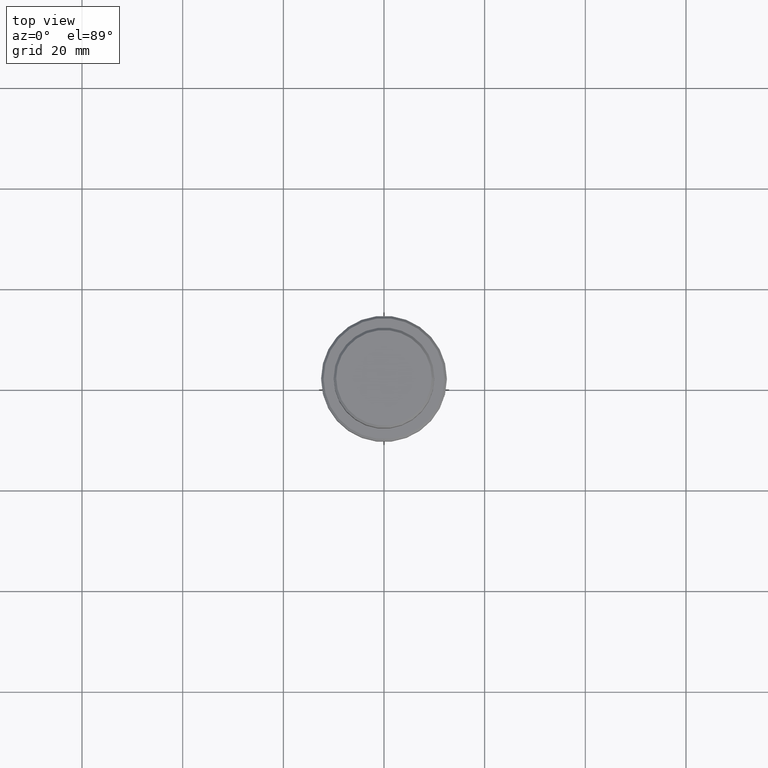
[diagram: clean part render]
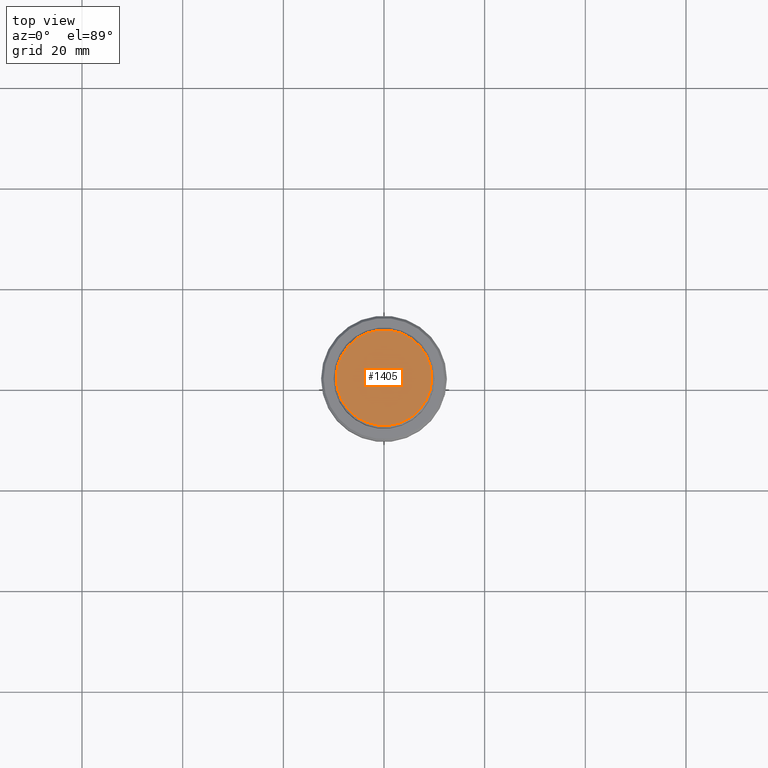
[diagram: same view with one face highlighted and labeled with its STEP entity id]
A machine part, top view. The second image highlights one B-rep face of the part: STEP entity #1405.
In plain terms, the highlighted planar face has unit normal (0, -0, 1).
Its self-contained STEP definition (entity closure, byte-faithful):
#5 = DIRECTION ( 'NONE',  ( 1.000000000000000000, 0.000000000000000000, 0.000000000000000000 ) ) ;
#7 = AXIS2_PLACEMENT_3D ( 'NONE', #857, #1396, #1186 ) ;
#27 = EDGE_CURVE ( 'NONE', #964, #1384, #1060, .T. ) ;
#111 = CARTESIAN_POINT ( 'NONE',  ( 9.500000000000023093, 1.194030629168670653E-15, 0.000000000000000000 ) ) ;
#127 = DIRECTION ( 'NONE',  ( 1.000000000000000000, 0.000000000000000000, 0.000000000000000000 ) ) ;
#208 = EDGE_CURVE ( 'NONE', #1384, #964, #656, .T. ) ;
#548 = PLANE ( 'NONE',  #1134 ) ;
#561 = DIRECTION ( 'NONE',  ( 0.000000000000000000, -0.000000000000000000, 1.000000000000000000 ) ) ;
#644 = CARTESIAN_POINT ( 'NONE',  ( 0.000000000000000000, 0.000000000000000000, 0.000000000000000000 ) ) ;
#656 = CIRCLE ( 'NONE', #7, 9.500000000000023093 ) ;
#676 = AXIS2_PLACEMENT_3D ( 'NONE', #1117, #1332, #127 ) ;
#741 = EDGE_LOOP ( 'NONE', ( #1294, #1221 ) ) ;
#804 = FACE_OUTER_BOUND ( 'NONE', #741, .T. ) ;
#857 = CARTESIAN_POINT ( 'NONE',  ( 0.000000000000000000, 0.000000000000000000, 0.000000000000000000 ) ) ;
#964 = VERTEX_POINT ( 'NONE', #1009 ) ;
#1009 = CARTESIAN_POINT ( 'NONE',  ( -9.500000000000023093, 0.000000000000000000, 0.000000000000000000 ) ) ;
#1060 = CIRCLE ( 'NONE', #676, 9.500000000000023093 ) ;
#1117 = CARTESIAN_POINT ( 'NONE',  ( 0.000000000000000000, 0.000000000000000000, 0.000000000000000000 ) ) ;
#1134 = AXIS2_PLACEMENT_3D ( 'NONE', #644, #561, #5 ) ;
#1186 = DIRECTION ( 'NONE',  ( 1.000000000000000000, 0.000000000000000000, 0.000000000000000000 ) ) ;
#1221 = ORIENTED_EDGE ( 'NONE', *, *, #208, .T. ) ;
#1294 = ORIENTED_EDGE ( 'NONE', *, *, #27, .T. ) ;
#1332 = DIRECTION ( 'NONE',  ( -0.000000000000000000, -0.000000000000000000, 1.000000000000000000 ) ) ;
#1384 = VERTEX_POINT ( 'NONE', #111 ) ;
#1396 = DIRECTION ( 'NONE',  ( -0.000000000000000000, -0.000000000000000000, 1.000000000000000000 ) ) ;
#1405 = ADVANCED_FACE ( 'NONE', ( #804 ), #548, .T. ) ;